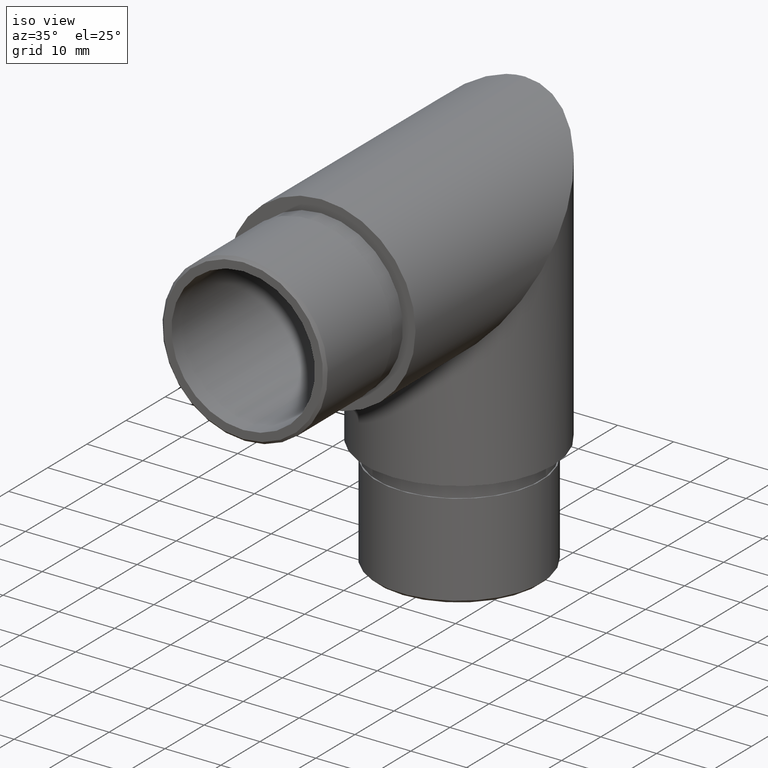
[diagram: clean part render]
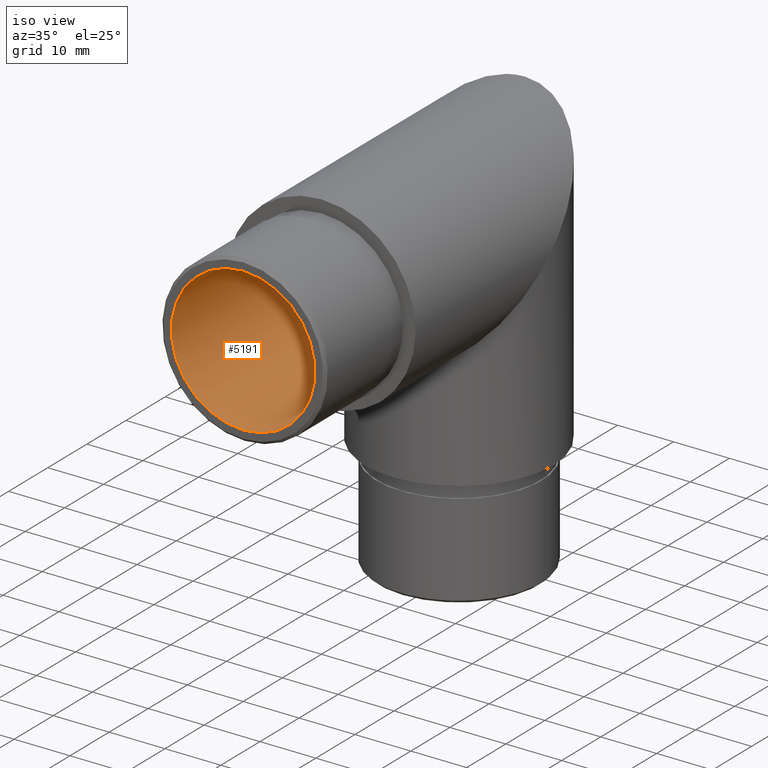
[diagram: same view with one face highlighted and labeled with its STEP entity id]
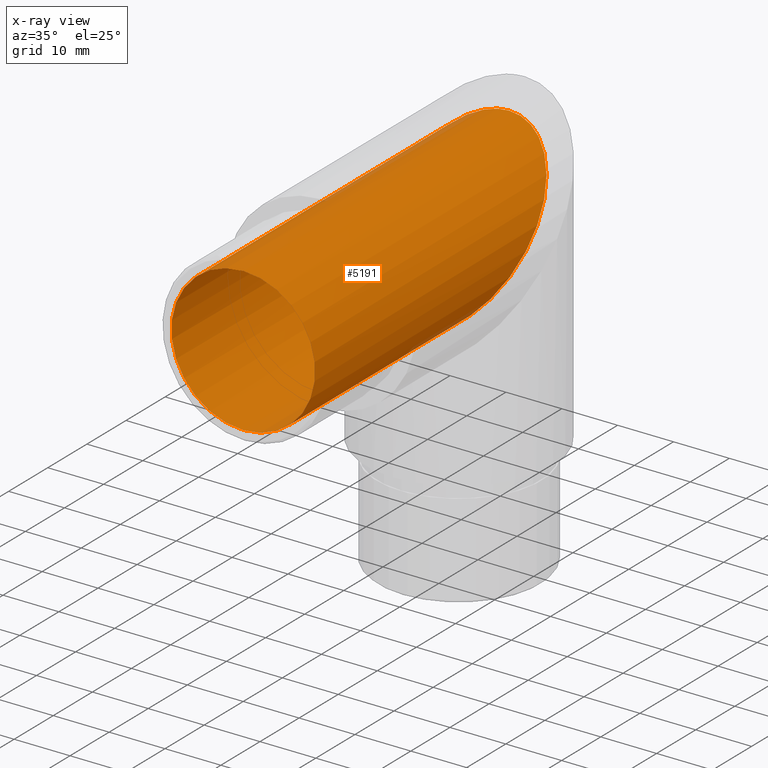
[diagram: x-ray of the same camera — body ghosted, the highlighted face saturated]
A machine part, iso view. The second image highlights one B-rep face of the part: STEP entity #5191.
The next image is the same camera in x-ray: the body ghosted, the highlighted face saturated — about 1% of this face is hidden behind the body in this view.
In plain terms, the highlighted cylindrical surface (bore or boss wall) has radius 12.85 mm, axis along (-0, -1, -0).
Its self-contained STEP definition (entity closure, byte-faithful):
#152 = DIRECTION ( 'NONE',  ( 0.0000000000000000000, 0.0000000000000000000, -1.000000000000000000 ) ) ;
#281 = CIRCLE ( 'NONE', #10509, 12.85000000000000000 ) ;
#342 = CARTESIAN_POINT ( 'NONE',  ( -1.573671136904348900E-015, 48.00000000000004300, 12.84999999999999800 ) ) ;
#880 = CARTESIAN_POINT ( 'NONE',  ( 0.0000000000000000000, 22.29999999999994400, -12.84999999999999800 ) ) ;
#1727 = CARTESIAN_POINT ( 'NONE',  ( -25.69999999999999600, 22.29999999999994400, -12.84999999999999800 ) ) ;
#1828 = CARTESIAN_POINT ( 'NONE',  ( 0.0000000000000000000, 22.29999999999994400, -12.84999999999999800 ) ) ;
#1872 = DIRECTION ( 'NONE',  ( 0.0000000000000000000, -1.000000000000000000, 0.0000000000000000000 ) ) ;
#2137 = ORIENTED_EDGE ( 'NONE', *, *, #5212, .T. ) ;
#2183 = FACE_OUTER_BOUND ( 'NONE', #2775, .T. ) ;
#2454 = CARTESIAN_POINT ( 'NONE',  ( -25.69999999999999600, 48.00000000000005000, 12.84999999999999600 ) ) ;
#2775 = EDGE_LOOP ( 'NONE', ( #4105 ) ) ;
#3458 = CARTESIAN_POINT ( 'NONE',  ( 0.0000000000000000000, 82.80899705197330700, 0.0000000000000000000 ) ) ;
#3624 = CARTESIAN_POINT ( 'NONE',  ( 25.69999999999999600, 22.29999999999994400, -12.84999999999999800 ) ) ;
#3687 = VERTEX_POINT ( 'NONE', #8129 ) ;
#4105 = ORIENTED_EDGE ( 'NONE', *, *, #7350, .T. ) ;
#4351 = DIRECTION ( 'NONE',  ( -0.0000000000000000000, -1.000000000000000000, -0.0000000000000000000 ) ) ;
#5191 = ADVANCED_FACE ( 'NONE', ( #2183, #7483 ), #10579, .F. ) ;
#5212 = EDGE_CURVE ( 'NONE', #3687, #3687, #281, .T. ) ;
#5328 =( BOUNDED_CURVE ( )  B_SPLINE_CURVE ( 3, ( #880, #1727, #2454, #342, #5977, #3624, #1828 ),
 .UNSPECIFIED., .T., .T. ) 
 B_SPLINE_CURVE_WITH_KNOTS ( ( 4, 3, 4 ),
 ( 0.0000000000000000000, 3.141592653589793100, 6.283185307179586200 ),
 .UNSPECIFIED. ) 
 CURVE ( )  GEOMETRIC_REPRESENTATION_ITEM ( )  RATIONAL_B_SPLINE_CURVE ( ( 1.000000000000000000, 0.3333333333333333700, 0.3333333333333333700, 1.000000000000000000, 0.3333333333333333700, 0.3333333333333333700, 1.000000000000000000 ) ) 
 REPRESENTATION_ITEM ( '' )  );
#5977 = CARTESIAN_POINT ( 'NONE',  ( 25.69999999999999600, 48.00000000000005000, 12.85000000000000100 ) ) ;
#6831 = CARTESIAN_POINT ( 'NONE',  ( 0.0000000000000000000, -20.00000000000000000, 0.0000000000000000000 ) ) ;
#7350 = EDGE_CURVE ( 'NONE', #9739, #9739, #5328, .T. ) ;
#7483 = FACE_OUTER_BOUND ( 'NONE', #10099, .T. ) ;
#8129 = CARTESIAN_POINT ( 'NONE',  ( 0.0000000000000000000, -20.00000000000000000, -12.85000000000000000 ) ) ;
#8497 = DIRECTION ( 'NONE',  ( 0.0000000000000000000, 0.0000000000000000000, -1.000000000000000000 ) ) ;
#8855 = AXIS2_PLACEMENT_3D ( 'NONE', #3458, #4351, #152 ) ;
#9739 = VERTEX_POINT ( 'NONE', #9826 ) ;
#9826 = CARTESIAN_POINT ( 'NONE',  ( 0.0000000000000000000, 22.29999999999994400, -12.84999999999999800 ) ) ;
#10099 = EDGE_LOOP ( 'NONE', ( #2137 ) ) ;
#10509 = AXIS2_PLACEMENT_3D ( 'NONE', #6831, #1872, #8497 ) ;
#10579 = CYLINDRICAL_SURFACE ( 'NONE', #8855, 12.85000000000000000 ) ;